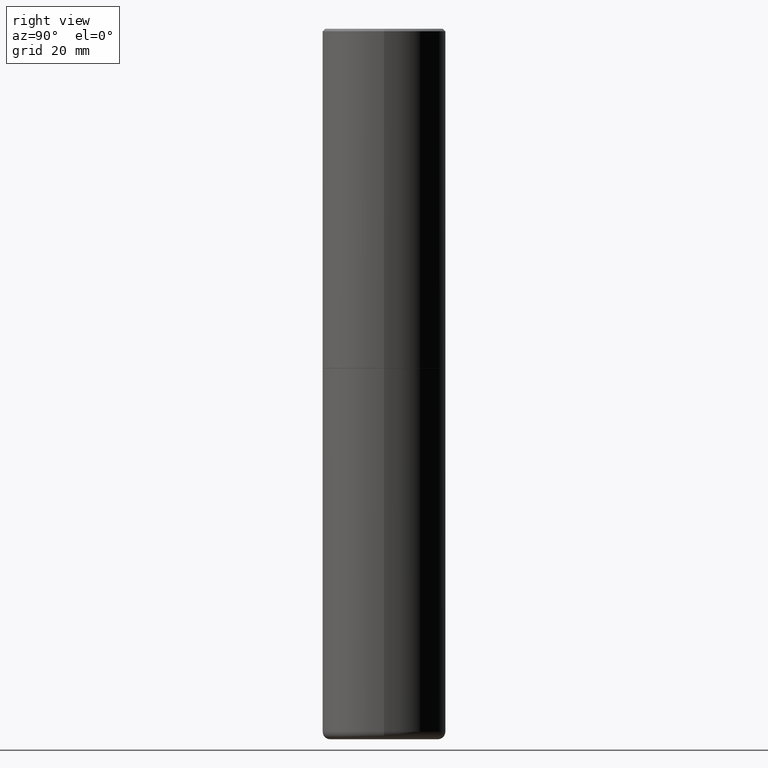
[diagram: clean part render]
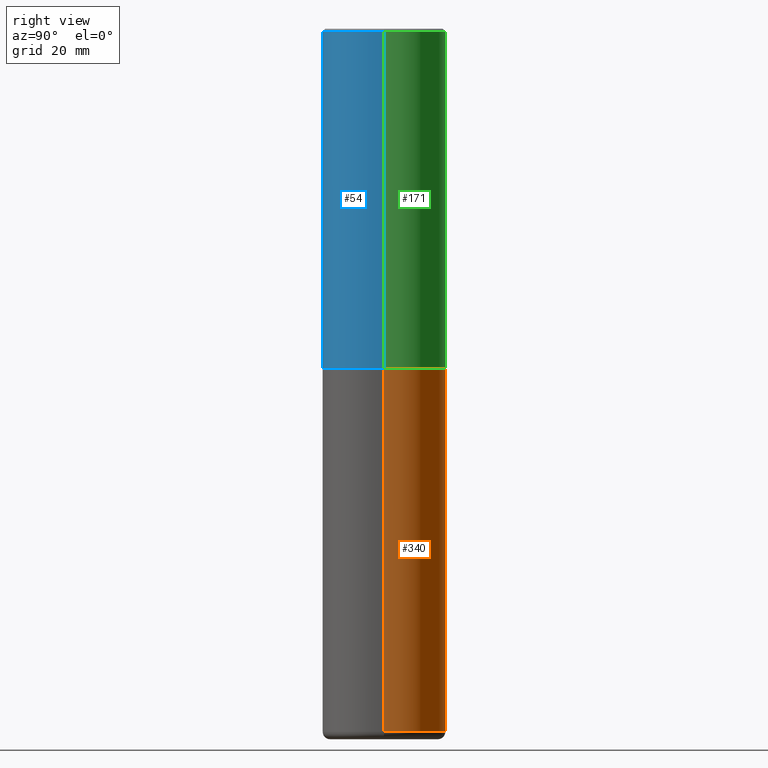
[diagram: same view with three faces highlighted in distinct colors, each labeled with its STEP entity id]
A machine part, right view with three faces highlighted in distinct colors.
Their STEP definitions:

[orange] entity #340 — the highlighted cylindrical surface (partial cylindrical patch) has radius 12.7 mm, axis along (-0, 0, 1).
#8 = FACE_OUTER_BOUND ( 'NONE', #131, .T. ) ;
#15 = CARTESIAN_POINT ( 'NONE',  ( 6.725039217009123399E-29, -9.601573681818648281E-15, -2.749999999999999556 ) ) ;
#37 = AXIS2_PLACEMENT_3D ( 'NONE', #15, #274, #306 ) ;
#38 = ORIENTED_EDGE ( 'NONE', *, *, #121, .F. ) ;
#41 = DIRECTION ( 'NONE',  ( 1.000000000000000000, -6.982962677686266711E-15, 4.876176775795935793E-29 ) ) ;
#44 = AXIS2_PLACEMENT_3D ( 'NONE', #172, #176, #210 ) ;
#85 = VERTEX_POINT ( 'NONE', #307 ) ;
#100 = EDGE_CURVE ( 'NONE', #261, #169, #136, .T. ) ;
#106 = ORIENTED_EDGE ( 'NONE', *, *, #414, .T. ) ;
#114 = VECTOR ( 'NONE', #393, 39.37007874015748143 ) ;
#121 = EDGE_CURVE ( 'NONE', #85, #169, #223, .T. ) ;
#125 = VECTOR ( 'NONE', #285, 39.37007874015748143 ) ;
#131 = EDGE_LOOP ( 'NONE', ( #106, #278, #38, #167 ) ) ;
#132 = CARTESIAN_POINT ( 'NONE',  ( 0.000000000000000000, 0.000000000000000000, 0.000000000000000000 ) ) ;
#136 = LINE ( 'NONE', #270, #114 ) ;
#154 = CARTESIAN_POINT ( 'NONE',  ( 0.5000000000000000000, -3.491481338843133355E-15, 2.438088387897967896E-29 ) ) ;
#167 = ORIENTED_EDGE ( 'NONE', *, *, #319, .F. ) ;
#169 = VERTEX_POINT ( 'NONE', #323 ) ;
#172 = CARTESIAN_POINT ( 'NONE',  ( 1.391471750719342616E-28, -1.986652881801749632E-14, -5.689999999999999503 ) ) ;
#176 = DIRECTION ( 'NONE',  ( -2.445468806185136597E-29, 3.491481338843145583E-15, 1.000000000000000000 ) ) ;
#206 = DIRECTION ( 'NONE',  ( -2.445468806185136597E-29, 3.491481338843145583E-15, 1.000000000000000000 ) ) ;
#207 = CYLINDRICAL_SURFACE ( 'NONE', #355, 0.5000000000000000000 ) ;
#210 = DIRECTION ( 'NONE',  ( 1.000000000000000000, -6.982962677686263555E-15, 0.000000000000000000 ) ) ;
#211 = VERTEX_POINT ( 'NONE', #413 ) ;
#223 = CIRCLE ( 'NONE', #37, 0.5000000000000000000 ) ;
#224 = LINE ( 'NONE', #154, #125 ) ;
#260 = CARTESIAN_POINT ( 'NONE',  ( -0.5000000000000002220, -1.631381513921699223E-14, -5.689999999999999503 ) ) ;
#261 = VERTEX_POINT ( 'NONE', #260 ) ;
#270 = CARTESIAN_POINT ( 'NONE',  ( -0.5000000000000000000, 3.552713678800500929E-15, -2.459467545127452891E-29 ) ) ;
#274 = DIRECTION ( 'NONE',  ( -2.445468806185136597E-29, 3.491481338843145583E-15, 1.000000000000000000 ) ) ;
#278 = ORIENTED_EDGE ( 'NONE', *, *, #100, .T. ) ;
#285 = DIRECTION ( 'NONE',  ( -2.445468806185136877E-29, 3.491481338843145188E-15, 1.000000000000000000 ) ) ;
#306 = DIRECTION ( 'NONE',  ( 1.000000000000000000, -6.982962677686266711E-15, 0.000000000000000000 ) ) ;
#307 = CARTESIAN_POINT ( 'NONE',  ( 0.5000000000000000000, -1.309305502066178164E-14, -2.749999999999999556 ) ) ;
#319 = EDGE_CURVE ( 'NONE', #211, #85, #224, .T. ) ;
#323 = CARTESIAN_POINT ( 'NONE',  ( -0.5000000000000000000, -1.118133757111757137E-14, -2.749999999999999556 ) ) ;
#333 = CIRCLE ( 'NONE', #44, 0.4999999999999999445 ) ;
#340 = ADVANCED_FACE ( 'NONE', ( #8 ), #207, .T. ) ;
#355 = AXIS2_PLACEMENT_3D ( 'NONE', #132, #206, #41 ) ;
#393 = DIRECTION ( 'NONE',  ( -2.445468806185136877E-29, 3.491481338843145188E-15, 1.000000000000000000 ) ) ;
#413 = CARTESIAN_POINT ( 'NONE',  ( 0.5000000000000002220, -2.335801015686062967E-14, -5.689999999999999503 ) ) ;
#414 = EDGE_CURVE ( 'NONE', #211, #261, #333, .T. ) ;

[blue] entity #54 — the highlighted cylindrical surface (partial cylindrical patch) has radius 12.7 mm, axis along (-0, 0, 1).
#12 = VECTOR ( 'NONE', #33, 39.37007874015748143 ) ;
#14 = CARTESIAN_POINT ( 'NONE',  ( -0.5000000000000001110, 3.552713678800501718E-15, -2.459467545127453732E-29 ) ) ;
#18 = LINE ( 'NONE', #14, #53 ) ;
#32 = CARTESIAN_POINT ( 'NONE',  ( 0.5000000000000001110, -3.491481338843134539E-15, 2.438088387897968457E-29 ) ) ;
#33 = DIRECTION ( 'NONE',  ( -2.445468806185136877E-29, 3.491481338843145188E-15, 1.000000000000000000 ) ) ;
#49 = VERTEX_POINT ( 'NONE', #342 ) ;
#53 = VECTOR ( 'NONE', #113, 39.37007874015748143 ) ;
#54 = ADVANCED_FACE ( 'NONE', ( #79 ), #111, .T. ) ;
#63 = VERTEX_POINT ( 'NONE', #296 ) ;
#79 = FACE_OUTER_BOUND ( 'NONE', #108, .T. ) ;
#108 = EDGE_LOOP ( 'NONE', ( #380, #273, #411, #230 ) ) ;
#111 = CYLINDRICAL_SURFACE ( 'NONE', #350, 0.5000000000000001110 ) ;
#113 = DIRECTION ( 'NONE',  ( -2.445468806185136877E-29, 3.491481338843145188E-15, 1.000000000000000000 ) ) ;
#126 = EDGE_CURVE ( 'NONE', #313, #63, #18, .T. ) ;
#155 = CARTESIAN_POINT ( 'NONE',  ( 6.722593748202938917E-29, -9.598082200479805274E-15, -2.748999999999999666 ) ) ;
#158 = EDGE_CURVE ( 'NONE', #313, #49, #359, .T. ) ;
#183 = DIRECTION ( 'NONE',  ( 1.000000000000000000, -6.982962677686267499E-15, 4.876176775795935793E-29 ) ) ;
#190 = DIRECTION ( 'NONE',  ( -2.445468806185136597E-29, 3.491481338843145583E-15, 1.000000000000000000 ) ) ;
#216 = EDGE_CURVE ( 'NONE', #63, #272, #257, .T. ) ;
#218 = DIRECTION ( 'NONE',  ( 1.000000000000000000, -6.982962677686265922E-15, 0.000000000000000000 ) ) ;
#225 = CARTESIAN_POINT ( 'NONE',  ( -0.5000000000000003331, -1.281242234827828821E-15, -2.748999999999999666 ) ) ;
#230 = ORIENTED_EDGE ( 'NONE', *, *, #216, .F. ) ;
#238 = CARTESIAN_POINT ( 'NONE',  ( 0.000000000000000000, 0.000000000000000000, 0.000000000000000000 ) ) ;
#241 = DIRECTION ( 'NONE',  ( -2.445468806185136597E-29, 3.491481338843145583E-15, 1.000000000000000000 ) ) ;
#242 = EDGE_CURVE ( 'NONE', #49, #272, #252, .T. ) ;
#252 = LINE ( 'NONE', #32, #12 ) ;
#257 = CIRCLE ( 'NONE', #298, 0.5000000000000000000 ) ;
#272 = VERTEX_POINT ( 'NONE', #381 ) ;
#273 = ORIENTED_EDGE ( 'NONE', *, *, #158, .T. ) ;
#291 = DIRECTION ( 'NONE',  ( 1.000000000000000000, -6.982962677686266711E-15, 0.000000000000000000 ) ) ;
#296 = CARTESIAN_POINT ( 'NONE',  ( -0.5000000000000000000, 3.421651712066270057E-15, -0.02000000000000010797 ) ) ;
#298 = AXIS2_PLACEMENT_3D ( 'NONE', #352, #417, #291 ) ;
#313 = VERTEX_POINT ( 'NONE', #225 ) ;
#321 = AXIS2_PLACEMENT_3D ( 'NONE', #155, #190, #218 ) ;
#342 = CARTESIAN_POINT ( 'NONE',  ( 0.5000000000000003331, -1.308956353932294179E-14, -2.748999999999999666 ) ) ;
#350 = AXIS2_PLACEMENT_3D ( 'NONE', #238, #241, #183 ) ;
#352 = CARTESIAN_POINT ( 'NONE',  ( 4.890937612370299433E-31, -6.982962677686328587E-17, -0.02000000000000010797 ) ) ;
#359 = CIRCLE ( 'NONE', #321, 0.5000000000000003331 ) ;
#380 = ORIENTED_EDGE ( 'NONE', *, *, #126, .F. ) ;
#381 = CARTESIAN_POINT ( 'NONE',  ( 0.5000000000000000000, -3.500078625662629079E-15, -0.02000000000000010797 ) ) ;
#411 = ORIENTED_EDGE ( 'NONE', *, *, #242, .T. ) ;
#417 = DIRECTION ( 'NONE',  ( -2.445468806185136597E-29, 3.491481338843145583E-15, 1.000000000000000000 ) ) ;

[green] entity #171 — the highlighted cylindrical surface (partial cylindrical patch) has radius 12.7 mm, axis along (-0, 0, 1).
#3 = CYLINDRICAL_SURFACE ( 'NONE', #231, 0.5000000000000001110 ) ;
#12 = VECTOR ( 'NONE', #33, 39.37007874015748143 ) ;
#14 = CARTESIAN_POINT ( 'NONE',  ( -0.5000000000000001110, 3.552713678800501718E-15, -2.459467545127453732E-29 ) ) ;
#18 = LINE ( 'NONE', #14, #53 ) ;
#31 = EDGE_CURVE ( 'NONE', #272, #63, #97, .T. ) ;
#32 = CARTESIAN_POINT ( 'NONE',  ( 0.5000000000000001110, -3.491481338843134539E-15, 2.438088387897968457E-29 ) ) ;
#33 = DIRECTION ( 'NONE',  ( -2.445468806185136877E-29, 3.491481338843145188E-15, 1.000000000000000000 ) ) ;
#49 = VERTEX_POINT ( 'NONE', #342 ) ;
#51 = ORIENTED_EDGE ( 'NONE', *, *, #126, .T. ) ;
#53 = VECTOR ( 'NONE', #113, 39.37007874015748143 ) ;
#56 = DIRECTION ( 'NONE',  ( 1.000000000000000000, -6.982962677686266711E-15, 0.000000000000000000 ) ) ;
#63 = VERTEX_POINT ( 'NONE', #296 ) ;
#82 = ORIENTED_EDGE ( 'NONE', *, *, #242, .F. ) ;
#97 = CIRCLE ( 'NONE', #148, 0.5000000000000000000 ) ;
#112 = CIRCLE ( 'NONE', #157, 0.5000000000000003331 ) ;
#113 = DIRECTION ( 'NONE',  ( -2.445468806185136877E-29, 3.491481338843145188E-15, 1.000000000000000000 ) ) ;
#115 = CARTESIAN_POINT ( 'NONE',  ( 4.890937612370299433E-31, -6.982962677686328587E-17, -0.02000000000000010797 ) ) ;
#124 = DIRECTION ( 'NONE',  ( 1.000000000000000000, -6.982962677686265922E-15, 0.000000000000000000 ) ) ;
#126 = EDGE_CURVE ( 'NONE', #313, #63, #18, .T. ) ;
#145 = EDGE_CURVE ( 'NONE', #49, #313, #112, .T. ) ;
#148 = AXIS2_PLACEMENT_3D ( 'NONE', #115, #363, #56 ) ;
#153 = CARTESIAN_POINT ( 'NONE',  ( 6.722593748202938917E-29, -9.598082200479805274E-15, -2.748999999999999666 ) ) ;
#157 = AXIS2_PLACEMENT_3D ( 'NONE', #153, #220, #124 ) ;
#171 = ADVANCED_FACE ( 'NONE', ( #324 ), #3, .T. ) ;
#219 = CARTESIAN_POINT ( 'NONE',  ( 0.000000000000000000, 0.000000000000000000, 0.000000000000000000 ) ) ;
#220 = DIRECTION ( 'NONE',  ( -2.445468806185136597E-29, 3.491481338843145583E-15, 1.000000000000000000 ) ) ;
#225 = CARTESIAN_POINT ( 'NONE',  ( -0.5000000000000003331, -1.281242234827828821E-15, -2.748999999999999666 ) ) ;
#231 = AXIS2_PLACEMENT_3D ( 'NONE', #219, #416, #249 ) ;
#242 = EDGE_CURVE ( 'NONE', #49, #272, #252, .T. ) ;
#249 = DIRECTION ( 'NONE',  ( 1.000000000000000000, -6.982962677686267499E-15, 4.876176775795935793E-29 ) ) ;
#252 = LINE ( 'NONE', #32, #12 ) ;
#272 = VERTEX_POINT ( 'NONE', #381 ) ;
#283 = ORIENTED_EDGE ( 'NONE', *, *, #145, .T. ) ;
#296 = CARTESIAN_POINT ( 'NONE',  ( -0.5000000000000000000, 3.421651712066270057E-15, -0.02000000000000010797 ) ) ;
#303 = ORIENTED_EDGE ( 'NONE', *, *, #31, .F. ) ;
#313 = VERTEX_POINT ( 'NONE', #225 ) ;
#324 = FACE_OUTER_BOUND ( 'NONE', #338, .T. ) ;
#338 = EDGE_LOOP ( 'NONE', ( #283, #51, #303, #82 ) ) ;
#342 = CARTESIAN_POINT ( 'NONE',  ( 0.5000000000000003331, -1.308956353932294179E-14, -2.748999999999999666 ) ) ;
#363 = DIRECTION ( 'NONE',  ( -2.445468806185136597E-29, 3.491481338843145583E-15, 1.000000000000000000 ) ) ;
#381 = CARTESIAN_POINT ( 'NONE',  ( 0.5000000000000000000, -3.500078625662629079E-15, -0.02000000000000010797 ) ) ;
#416 = DIRECTION ( 'NONE',  ( -2.445468806185136597E-29, 3.491481338843145583E-15, 1.000000000000000000 ) ) ;